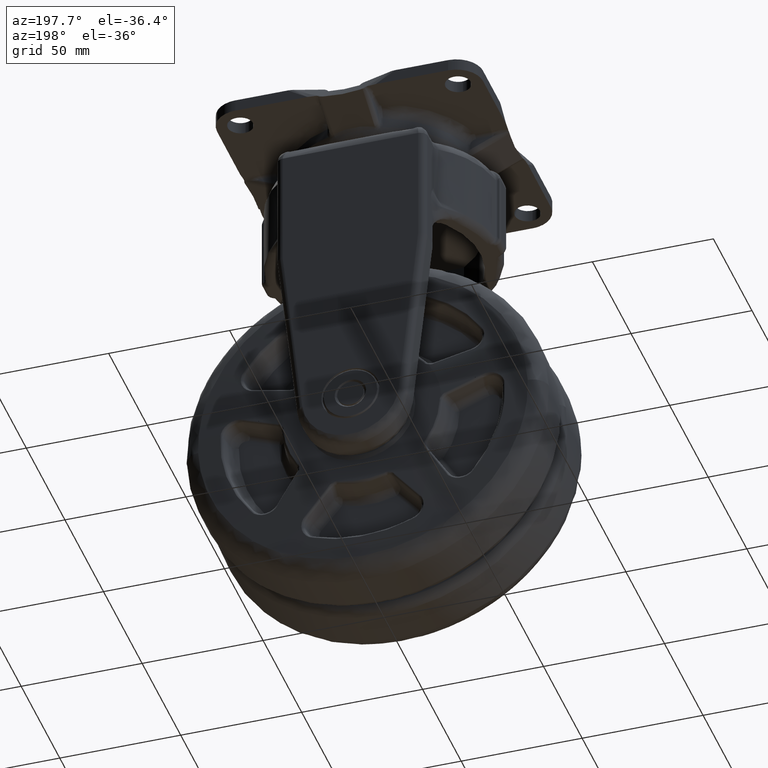
[diagram: clean part render]
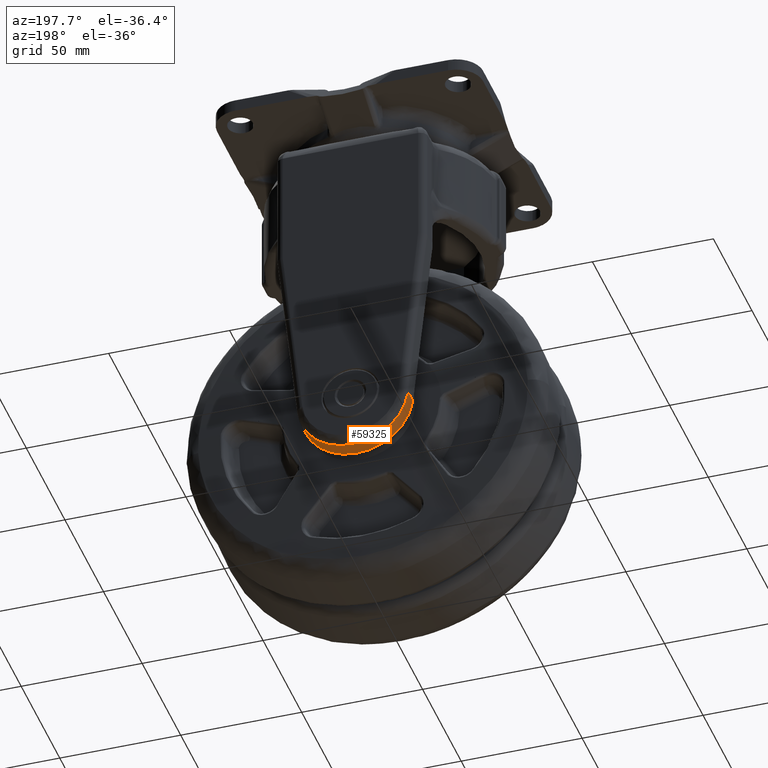
[diagram: same view with one face highlighted and labeled with its STEP entity id]
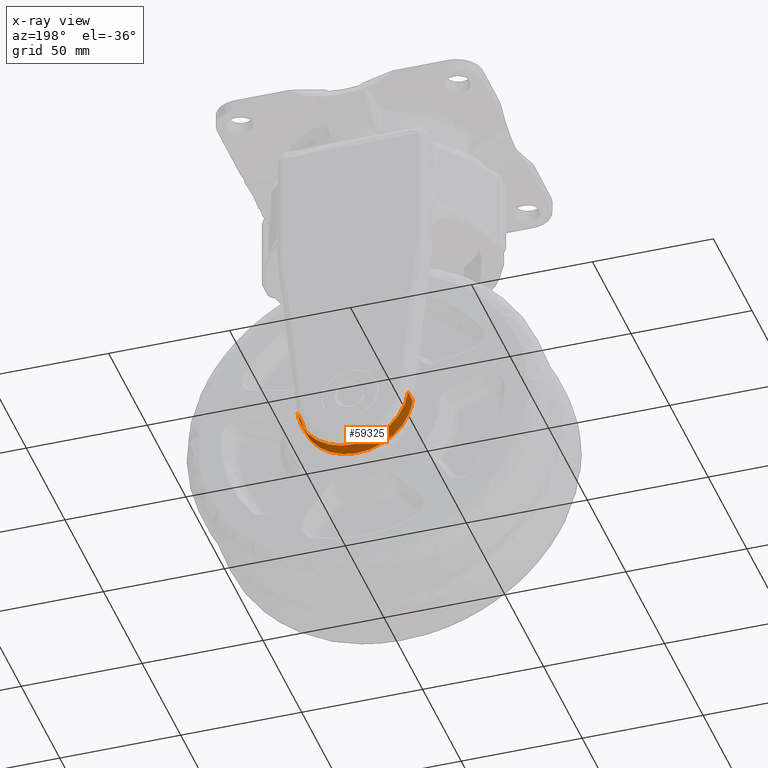
[diagram: x-ray of the same camera — body ghosted, the highlighted face saturated]
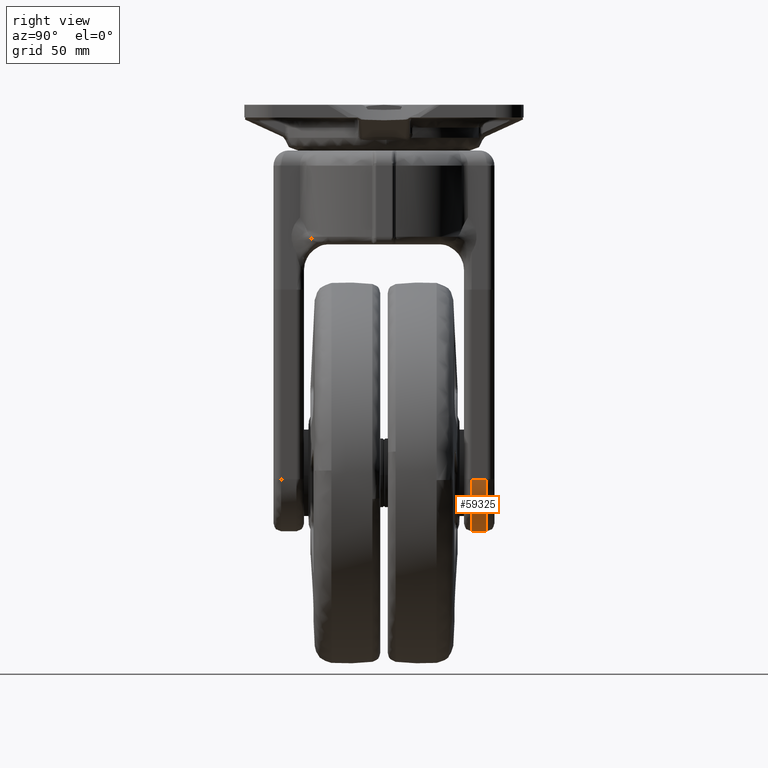
[diagram: same view with one face highlighted and labeled with its STEP entity id]
A machine part, auxiliary view. The second image highlights one B-rep face of the part: STEP entity #59325.
The next image is the same camera in x-ray: the body ghosted, the highlighted face saturated — about 0% of this face is hidden behind the body in this view.
A second angle (right view) of the same face is appended — the face is thin or edge-on in the first view.
In plain terms, the highlighted face is a freeform B-spline surface patch.
Its self-contained STEP definition (entity closure, byte-faithful):
#58300=CARTESIAN_POINT('',(-22.864665034186249,40.500000000000000,-129.491403686258390));
#58301=VERTEX_POINT('',#58300);
#58346=CARTESIAN_POINT('',(22.864665001136700,40.500000000000000,-129.491403989568000));
#58347=VERTEX_POINT('',#58346);
#58361=CARTESIAN_POINT('',(-22.864665034186249,40.500000000000000,-129.491403686258390));
#58362=CARTESIAN_POINT('',(-22.684680770487930,40.500000000000099,-131.145728976559210));
#58363=CARTESIAN_POINT('',(-22.058141627555301,40.499999999999893,-133.984683921956390));
#58364=CARTESIAN_POINT('',(-20.602124104741950,40.500000000000092,-137.375549877874790));
#58365=CARTESIAN_POINT('',(-18.987157795145091,40.499999999999901,-140.088407538048810));
#58366=CARTESIAN_POINT('',(-16.664384423352111,40.500000000000512,-143.066244158805690));
#58367=CARTESIAN_POINT('',(-13.264156259297250,40.499999999999410,-146.012259548792510));
#58368=CARTESIAN_POINT('',(-9.009586871353893,40.500000000000163,-148.319554302808310));
#58369=CARTESIAN_POINT('',(-4.977768302392554,40.499999999999950,-149.578691370658190));
#58370=CARTESIAN_POINT('',(-1.142281012336591,40.500000000000000,-150.063131302111910));
#58371=CARTESIAN_POINT('',(1.930261016576937,40.500000000000043,-149.975312263994910));
#58372=CARTESIAN_POINT('',(5.051833342045073,40.499999999999801,-149.508345961923200));
#58373=CARTESIAN_POINT('',(8.093281046692292,40.500000000000419,-148.634158084668200));
#58374=CARTESIAN_POINT('',(11.669384963494950,40.499999999999943,-146.951475997623500));
#58375=CARTESIAN_POINT('',(14.696158390986220,40.500000000001151,-144.830656716571410));
#58376=CARTESIAN_POINT('',(17.388190785481260,40.499999999999581,-142.184225397125290));
#58377=CARTESIAN_POINT('',(19.819858805544769,40.500000000000838,-138.955722607553810));
#58378=CARTESIAN_POINT('',(21.895808694459671,40.499999999997989,-134.671804105566110));
#58379=CARTESIAN_POINT('',(22.675211964558219,40.500000000001442,-131.232777147179800));
#58380=CARTESIAN_POINT('',(22.864665001136700,40.500000000000000,-129.491403989568000));
#58381=B_SPLINE_CURVE_WITH_KNOTS('',3,(#58361,#58362,#58363,#58364,#58365,#58366,#58367,#58368,#58369,#58370,#58371,#58372,#58373,#58374,#58375,#58376,#58377,#58378,#58379,#58380),.UNSPECIFIED.,.F.,.U.,(4,1,1,1,1,1,1,1,1,1,1,1,1,1,1,1,1,4),(0.000000035921886,4.992237324452717,8.670717680786986,11.035506241481411,14.451336552232711,19.969155384568491,24.435960064588588,28.902785928187139,32.581197910188493,35.996864289510327,38.098868879509737,42.040240936932982,45.455963357447068,49.922787701836498,53.075813852319058,56.754398625901118,62.009466187415960,67.264392844513139),.UNSPECIFIED.);
#58382=EDGE_CURVE('',#58301,#58347,#58381,.T.);
#59257=CARTESIAN_POINT('',(22.864665001136700,34.500000000000000,-129.491403989568000));
#59258=VERTEX_POINT('',#59257);
#59264=CARTESIAN_POINT('',(22.864665001136700,40.500000000000000,-129.491403989568000));
#59265=CARTESIAN_POINT('',(22.864665001136700,34.500000000000000,-129.491403989568000));
#59266=QUASI_UNIFORM_CURVE('',1,(#59264,#59265),.UNSPECIFIED.,.F.,.U.);
#59267=EDGE_CURVE('',#58347,#59258,#59266,.T.);
#59273=CARTESIAN_POINT('',(22.935816364647959,40.650000000000070,-128.717069346470400));
#59274=CARTESIAN_POINT('',(22.935816364647970,34.346249999999998,-128.717069346470400));
#59275=CARTESIAN_POINT('',(21.306378396255312,40.650000000000077,-150.482346385200630));
#59276=CARTESIAN_POINT('',(21.306378396255322,34.346249999999991,-150.482346385200630));
#59277=CARTESIAN_POINT('',(-0.514348280950685,40.650000000000041,-149.994248091627810));
#59278=CARTESIAN_POINT('',(-0.514348280950671,34.346249999999969,-149.994248091627810));
#59279=CARTESIAN_POINT('',(-22.335074958156696,40.650000000000013,-149.506149798055020));
#59280=CARTESIAN_POINT('',(-22.335074958156685,34.346249999999941,-149.506149798055020));
#59281=CARTESIAN_POINT('',(-22.989654182899031,40.650000000000013,-127.689782577455300));
#59282=CARTESIAN_POINT('',(-22.989654182899020,34.346249999999941,-127.689782577455300));
#59290=(BOUNDED_SURFACE()B_SPLINE_SURFACE(1,2,((#59273,#59275,#59277,#59279,#59281),(#59274,#59276,#59278,#59280,#59282)),.UNSPECIFIED.,.F.,.F.,.U.)B_SPLINE_SURFACE_WITH_KNOTS((2,2),(3,2,3),(0.0,6.303750000000076),(0.0,36.704278210621013,73.408556421242011),.UNSPECIFIED.)GEOMETRIC_REPRESENTATION_ITEM()RATIONAL_B_SPLINE_SURFACE(((1.0,0.725374371012288,1.0,0.725374371012288,1.0),(1.0,0.725374371012288,1.0,0.725374371012288,1.0)))REPRESENTATION_ITEM('')SURFACE());
#59291=ORIENTED_EDGE('',*,*,#59267,.T.);
#59292=CARTESIAN_POINT('',(-22.864665034186249,34.500000000000000,-129.491403686258390));
#59293=VERTEX_POINT('',#59292);
#59294=CARTESIAN_POINT('',(22.864665001136700,34.500000000000000,-129.491403989568000));
#59295=CARTESIAN_POINT('',(22.684707080852771,34.499999999999993,-131.145743709824300));
#59296=CARTESIAN_POINT('',(22.096037108416009,34.500000000000007,-133.812590429924090));
#59297=CARTESIAN_POINT('',(20.612699506012749,34.499999999999972,-137.379155281372110));
#59298=CARTESIAN_POINT('',(18.815815342312991,34.499999999999957,-140.397852203709190));
#59299=CARTESIAN_POINT('',(16.277028716095302,34.499999999999943,-143.431442523457090));
#59300=CARTESIAN_POINT('',(13.022453504663750,34.500000000000007,-146.123878302979510));
#59301=CARTESIAN_POINT('',(9.091772316376531,34.500000000000107,-148.284754510443010));
#59302=CARTESIAN_POINT('',(4.813298128834009,34.499999999999908,-149.648009122140110));
#59303=CARTESIAN_POINT('',(0.526849085044498,34.499999999999922,-150.114887518463290));
#59304=CARTESIAN_POINT('',(-3.856035632663612,34.499999999999773,-149.814063509384790));
#59305=CARTESIAN_POINT('',(-8.031120919162341,34.500000000000107,-148.716784769946600));
#59306=CARTESIAN_POINT('',(-11.898473386744021,34.499999999999993,-146.815082056299500));
#59307=CARTESIAN_POINT('',(-14.883951135893820,34.499999999999993,-144.645957978425400));
#59308=CARTESIAN_POINT('',(-17.137732793336930,34.499999999999993,-142.430380460973910));
#59309=CARTESIAN_POINT('',(-19.257936788000482,34.500000000000220,-139.745132745260610));
#59310=CARTESIAN_POINT('',(-20.902241173335739,34.499999999999417,-136.833459184986310));
#59311=CARTESIAN_POINT('',(-22.241166363672281,34.500000000001023,-133.211726118113210));
#59312=CARTESIAN_POINT('',(-22.713026477820549,34.499999999999041,-130.884481315501600));
#59313=CARTESIAN_POINT('',(-22.864665034186249,34.500000000000000,-129.491403686258390));
#59314=B_SPLINE_CURVE_WITH_KNOTS('',3,(#59294,#59295,#59296,#59297,#59298,#59299,#59300,#59301,#59302,#59303,#59304,#59305,#59306,#59307,#59308,#59309,#59310,#59311,#59312,#59313),.UNSPECIFIED.,.F.,.U.,(4,1,1,1,1,1,1,1,1,1,1,1,1,1,1,1,1,4),(0.000000035948474,4.992237324482616,8.145235988279353,11.561025669866989,15.502331030951760,19.969155384596551,24.173191274065619,28.902785928208122,33.369451717936613,37.047841239348188,42.040240936943754,46.244247517070079,49.922787701844882,53.075813852326817,55.703357664244251,60.170160182756597,63.060486274335169,67.264392844513168),.UNSPECIFIED.);
#59315=EDGE_CURVE('',#59258,#59293,#59314,.T.);
#59316=ORIENTED_EDGE('',*,*,#59315,.T.);
#59317=CARTESIAN_POINT('',(-22.864665034186249,40.500000000000000,-129.491403686258390));
#59318=CARTESIAN_POINT('',(-22.864665034186249,34.500000000000000,-129.491403686258390));
#59319=QUASI_UNIFORM_CURVE('',1,(#59317,#59318),.UNSPECIFIED.,.F.,.U.);
#59320=EDGE_CURVE('',#58301,#59293,#59319,.T.);
#59321=ORIENTED_EDGE('',*,*,#59320,.F.);
#59322=ORIENTED_EDGE('',*,*,#58382,.T.);
#59323=EDGE_LOOP('',(#59291,#59316,#59321,#59322));
#59324=FACE_OUTER_BOUND('',#59323,.T.);
#59325=ADVANCED_FACE('',(#59324),#59290,.T.);